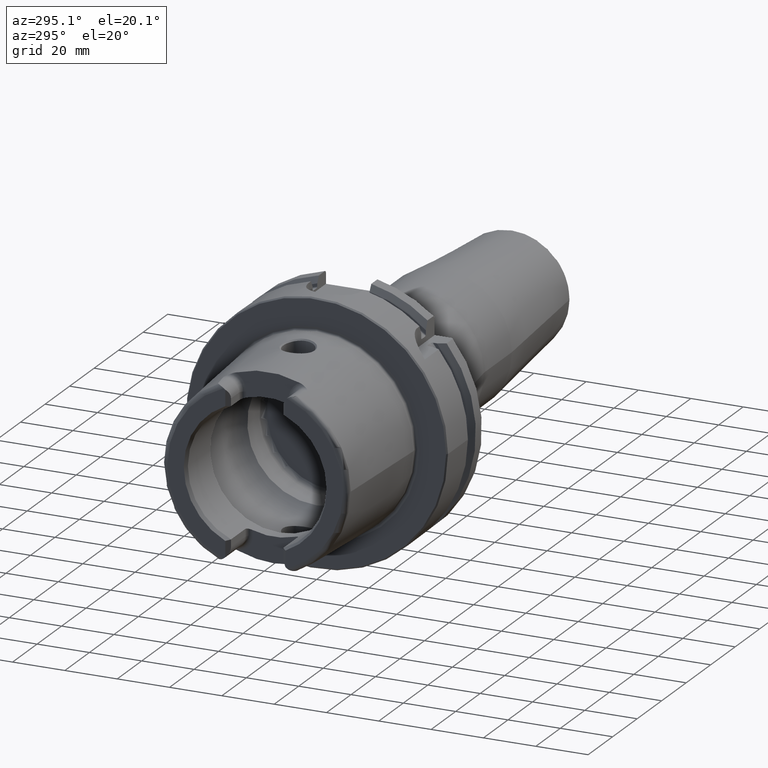
[diagram: clean part render]
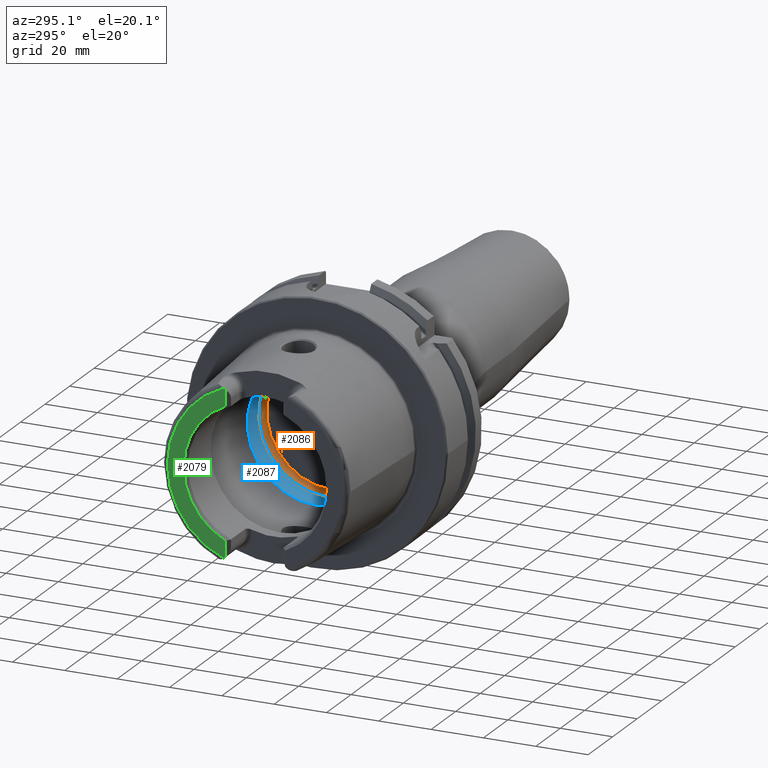
[diagram: same view with three faces highlighted in distinct colors, each labeled with its STEP entity id]
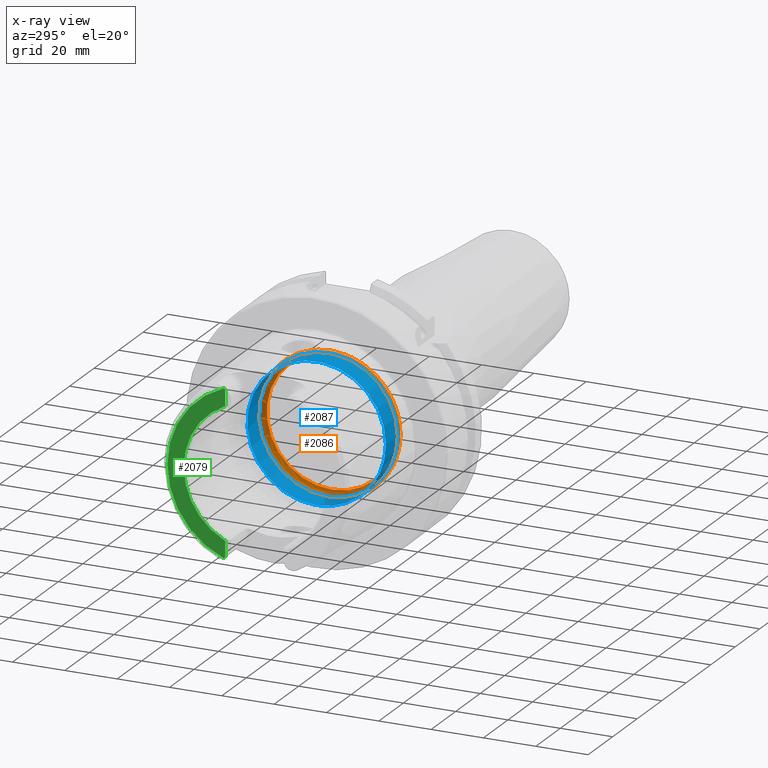
[diagram: x-ray of the same camera — body ghosted, the three highlighted faces saturated]
A machine part, auxiliary view with three faces highlighted in distinct colors.
The next image is the same camera in x-ray (body ghosted, the three faces saturated) — at least one of them is partly hidden behind the body in this view.
Their STEP definitions:

[orange] entity #2086 — the highlighted toroidal blend (fillet) surface has major radius 24.9 mm and minor (blend) radius 2 mm.
#156=TOROIDAL_SURFACE('',#2348,24.9,2.);
#311=FACE_OUTER_BOUND('',#443,.T.);
#443=EDGE_LOOP('',(#1887,#1888,#1889,#1890,#1891));
#787=CIRCLE('',#2347,24.9);
#788=CIRCLE('',#2349,2.);
#789=CIRCLE('',#2350,26.5);
#790=CIRCLE('',#2351,26.5);
#1002=VERTEX_POINT('',#4479);
#1003=VERTEX_POINT('',#4482);
#1004=VERTEX_POINT('',#4484);
#1304=EDGE_CURVE('',#1002,#1002,#787,.T.);
#1305=EDGE_CURVE('',#1002,#1003,#788,.T.);
#1306=EDGE_CURVE('',#1003,#1004,#789,.T.);
#1307=EDGE_CURVE('',#1004,#1003,#790,.T.);
#1887=ORIENTED_EDGE('',*,*,#1304,.F.);
#1888=ORIENTED_EDGE('',*,*,#1305,.T.);
#1889=ORIENTED_EDGE('',*,*,#1306,.T.);
#1890=ORIENTED_EDGE('',*,*,#1307,.T.);
#1891=ORIENTED_EDGE('',*,*,#1305,.F.);
#2086=ADVANCED_FACE('',(#311),#156,.F.);
#2347=AXIS2_PLACEMENT_3D('',#4480,#2931,#2932);
#2348=AXIS2_PLACEMENT_3D('',#4481,#2933,#2934);
#2349=AXIS2_PLACEMENT_3D('',#4483,#2935,#2936);
#2350=AXIS2_PLACEMENT_3D('',#4485,#2937,#2938);
#2351=AXIS2_PLACEMENT_3D('',#4486,#2939,#2940);
#2931=DIRECTION('center_axis',(-1.,0.,0.));
#2932=DIRECTION('ref_axis',(0.,0.,1.));
#2933=DIRECTION('center_axis',(-1.,0.,0.));
#2934=DIRECTION('ref_axis',(0.,0.,1.));
#2935=DIRECTION('center_axis',(0.,1.,-1.22464679914735E-16));
#2936=DIRECTION('ref_axis',(0.,-1.22464679914735E-16,-1.));
#2937=DIRECTION('center_axis',(-1.,0.,0.));
#2938=DIRECTION('ref_axis',(0.,0.,1.));
#2939=DIRECTION('center_axis',(-1.,0.,0.));
#2940=DIRECTION('ref_axis',(0.,0.,1.));
#4479=CARTESIAN_POINT('',(12.5,-3.04937052987691E-15,-24.9));
#4480=CARTESIAN_POINT('Origin',(12.5,0.,0.));
#4481=CARTESIAN_POINT('Origin',(10.5,0.,0.));
#4482=CARTESIAN_POINT('',(9.3,-3.24531401774049E-15,-26.5));
#4483=CARTESIAN_POINT('Origin',(10.5,-3.04937052987691E-15,-24.9));
#4484=CARTESIAN_POINT('',(9.3,-26.5,3.24531401774049E-15));
#4485=CARTESIAN_POINT('Origin',(9.3,0.,0.));
#4486=CARTESIAN_POINT('Origin',(9.3,0.,0.));

[blue] entity #2087 — the highlighted cylindrical surface (bore or boss wall) has radius 26.5 mm, axis along (-1, 0, 0).
#205=CYLINDRICAL_SURFACE('',#2352,26.5);
#312=FACE_OUTER_BOUND('',#444,.T.);
#444=EDGE_LOOP('',(#1892,#1893,#1894,#1895,#1896,#1897));
#563=LINE('',#4488,#671);
#671=VECTOR('',#2943,26.5);
#724=CIRCLE('',#2218,26.5);
#725=CIRCLE('',#2219,26.5);
#789=CIRCLE('',#2350,26.5);
#790=CIRCLE('',#2351,26.5);
#904=VERTEX_POINT('',#3840);
#905=VERTEX_POINT('',#3841);
#1003=VERTEX_POINT('',#4482);
#1004=VERTEX_POINT('',#4484);
#1142=EDGE_CURVE('',#904,#905,#724,.T.);
#1143=EDGE_CURVE('',#905,#904,#725,.T.);
#1306=EDGE_CURVE('',#1003,#1004,#789,.T.);
#1307=EDGE_CURVE('',#1004,#1003,#790,.T.);
#1308=EDGE_CURVE('',#1004,#904,#563,.T.);
#1892=ORIENTED_EDGE('',*,*,#1307,.F.);
#1893=ORIENTED_EDGE('',*,*,#1308,.T.);
#1894=ORIENTED_EDGE('',*,*,#1142,.T.);
#1895=ORIENTED_EDGE('',*,*,#1143,.T.);
#1896=ORIENTED_EDGE('',*,*,#1308,.F.);
#1897=ORIENTED_EDGE('',*,*,#1306,.F.);
#2087=ADVANCED_FACE('',(#312),#205,.F.);
#2218=AXIS2_PLACEMENT_3D('',#3842,#2615,#2616);
#2219=AXIS2_PLACEMENT_3D('',#3843,#2617,#2618);
#2350=AXIS2_PLACEMENT_3D('',#4485,#2937,#2938);
#2351=AXIS2_PLACEMENT_3D('',#4486,#2939,#2940);
#2352=AXIS2_PLACEMENT_3D('',#4487,#2941,#2942);
#2615=DIRECTION('center_axis',(-1.,0.,0.));
#2616=DIRECTION('ref_axis',(0.,0.,1.));
#2617=DIRECTION('center_axis',(-1.,0.,0.));
#2618=DIRECTION('ref_axis',(0.,0.,1.));
#2937=DIRECTION('center_axis',(-1.,0.,0.));
#2938=DIRECTION('ref_axis',(0.,0.,1.));
#2939=DIRECTION('center_axis',(-1.,0.,0.));
#2940=DIRECTION('ref_axis',(0.,0.,1.));
#2941=DIRECTION('center_axis',(-1.,0.,0.));
#2942=DIRECTION('ref_axis',(0.,1.,0.));
#2943=DIRECTION('',(-1.,0.,0.));
#3840=CARTESIAN_POINT('',(0.,-26.5,3.24531401774049E-15));
#3841=CARTESIAN_POINT('',(0.,-3.24531401774049E-15,-26.5));
#3842=CARTESIAN_POINT('Origin',(0.,0.,0.));
#3843=CARTESIAN_POINT('Origin',(0.,0.,0.));
#4482=CARTESIAN_POINT('',(9.3,-3.24531401774049E-15,-26.5));
#4484=CARTESIAN_POINT('',(9.3,-26.5,3.24531401774049E-15));
#4485=CARTESIAN_POINT('Origin',(9.3,0.,0.));
#4486=CARTESIAN_POINT('Origin',(9.3,0.,0.));
#4487=CARTESIAN_POINT('Origin',(4.65,0.,0.));
#4488=CARTESIAN_POINT('',(4.65,-26.5,3.24531401774049E-15));

[green] entity #2079 — the highlighted planar face has unit normal (-1, 0, 0).
#129=PLANE('',#2333);
#304=FACE_OUTER_BOUND('',#433,.T.);
#433=EDGE_LOOP('',(#1861,#1862,#1863,#1864,#1865,#1866));
#482=LINE('',#3120,#590);
#494=LINE('',#3231,#602);
#590=VECTOR('',#2502,10.);
#602=VECTOR('',#2562,10.);
#701=CIRCLE('',#2175,4.88);
#712=CIRCLE('',#2200,4.88);
#776=CIRCLE('',#2325,27.3660254037844);
#777=CIRCLE('',#2329,33.6001839277785);
#842=VERTEX_POINT('',#3113);
#845=VERTEX_POINT('',#3118);
#848=VERTEX_POINT('',#3128);
#869=VERTEX_POINT('',#3228);
#870=VERTEX_POINT('',#3230);
#875=VERTEX_POINT('',#3249);
#1063=EDGE_CURVE('',#845,#842,#482,.T.);
#1067=EDGE_CURVE('',#848,#842,#701,.T.);
#1094=EDGE_CURVE('',#869,#870,#494,.T.);
#1101=EDGE_CURVE('',#869,#875,#712,.T.);
#1289=EDGE_CURVE('',#870,#845,#776,.T.);
#1291=EDGE_CURVE('',#848,#875,#777,.T.);
#1861=ORIENTED_EDGE('',*,*,#1063,.F.);
#1862=ORIENTED_EDGE('',*,*,#1289,.F.);
#1863=ORIENTED_EDGE('',*,*,#1094,.F.);
#1864=ORIENTED_EDGE('',*,*,#1101,.T.);
#1865=ORIENTED_EDGE('',*,*,#1291,.F.);
#1866=ORIENTED_EDGE('',*,*,#1067,.T.);
#2079=ADVANCED_FACE('',(#304),#129,.T.);
#2175=AXIS2_PLACEMENT_3D('',#3129,#2510,#2511);
#2200=AXIS2_PLACEMENT_3D('',#3262,#2571,#2572);
#2325=AXIS2_PLACEMENT_3D('',#4445,#2883,#2884);
#2329=AXIS2_PLACEMENT_3D('',#4450,#2892,#2893);
#2333=AXIS2_PLACEMENT_3D('',#4457,#2901,#2902);
#2502=DIRECTION('',(0.,0.,-1.));
#2510=DIRECTION('center_axis',(-1.,0.,0.));
#2511=DIRECTION('ref_axis',(0.,-0.477884921181368,0.878422450821629));
#2562=DIRECTION('',(0.,0.,-1.));
#2571=DIRECTION('center_axis',(-1.,0.,0.));
#2572=DIRECTION('ref_axis',(0.,1.,0.));
#2883=DIRECTION('center_axis',(-1.,0.,0.));
#2884=DIRECTION('ref_axis',(0.,-1.,0.));
#2892=DIRECTION('center_axis',(1.,0.,0.));
#2893=DIRECTION('ref_axis',(0.,0.,-1.));
#2901=DIRECTION('center_axis',(-1.,0.,0.));
#2902=DIRECTION('ref_axis',(0.,0.,1.));
#3113=CARTESIAN_POINT('',(-50.,11.51,-30.8899431813596));
#3118=CARTESIAN_POINT('',(-50.,11.51,-24.8277918148307));
#3120=CARTESIAN_POINT('',(-50.,11.51,-10.));
#3128=CARTESIAN_POINT('',(-50.,12.0743049948301,-31.355757348091));
#3129=CARTESIAN_POINT('Origin',(-50.,14.89,-27.37));
#3228=CARTESIAN_POINT('',(-50.,11.51,30.8899431813596));
#3230=CARTESIAN_POINT('',(-50.,11.51,24.8277918148307));
#3231=CARTESIAN_POINT('',(-50.,11.51,13.685));
#3249=CARTESIAN_POINT('',(-50.,12.0743049948301,31.355757348091));
#3262=CARTESIAN_POINT('Origin',(-50.,14.89,27.37));
#4445=CARTESIAN_POINT('Origin',(-50.,0.,0.));
#4450=CARTESIAN_POINT('Origin',(-50.,0.,0.));
#4457=CARTESIAN_POINT('Origin',(-50.,33.6001839277785,0.));